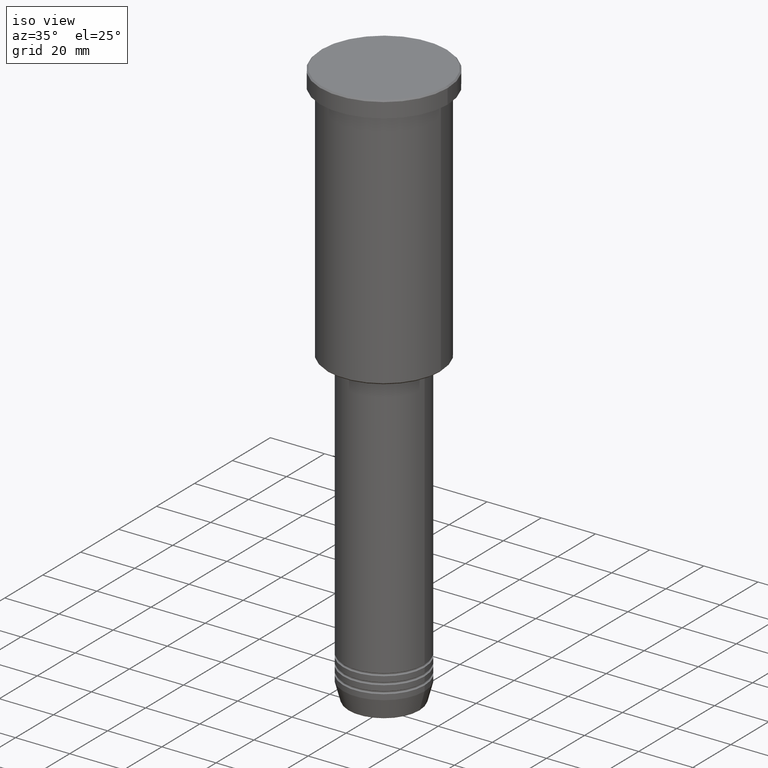
[diagram: clean part render]
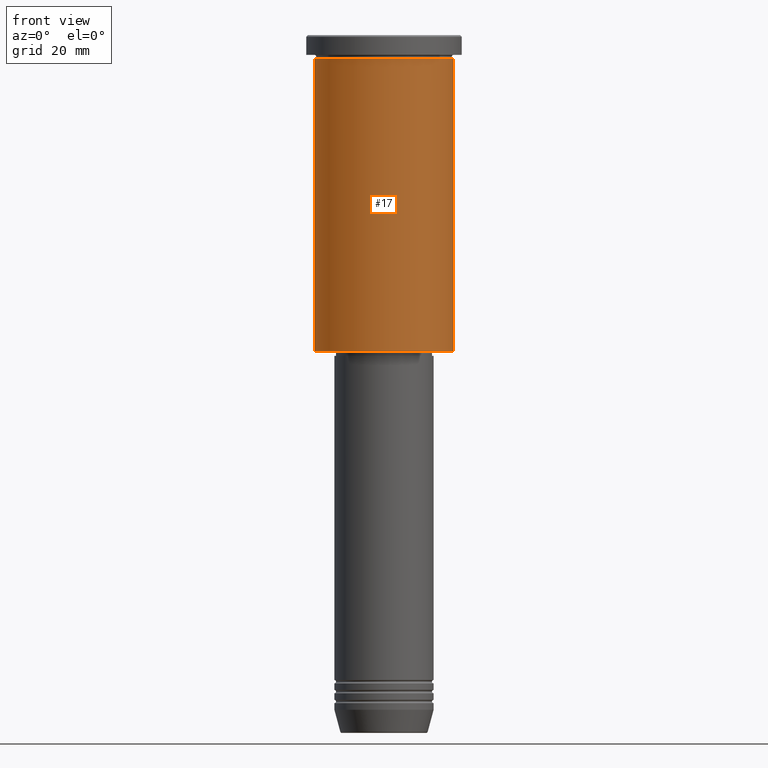
[diagram: tour spotlight — one face highlighted and labeled with its STEP entity id]
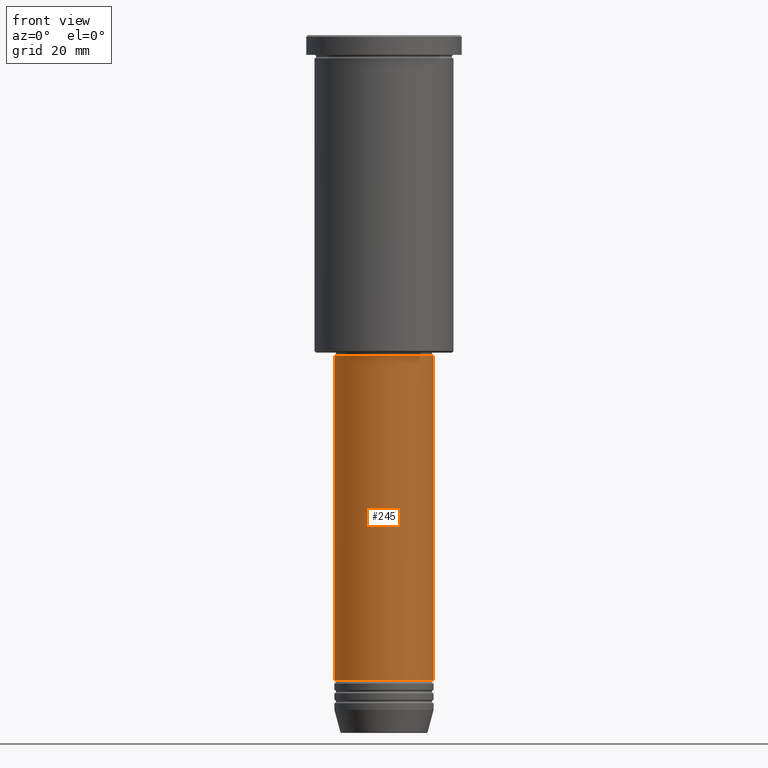
[diagram: tour spotlight — one face highlighted and labeled with its STEP entity id]
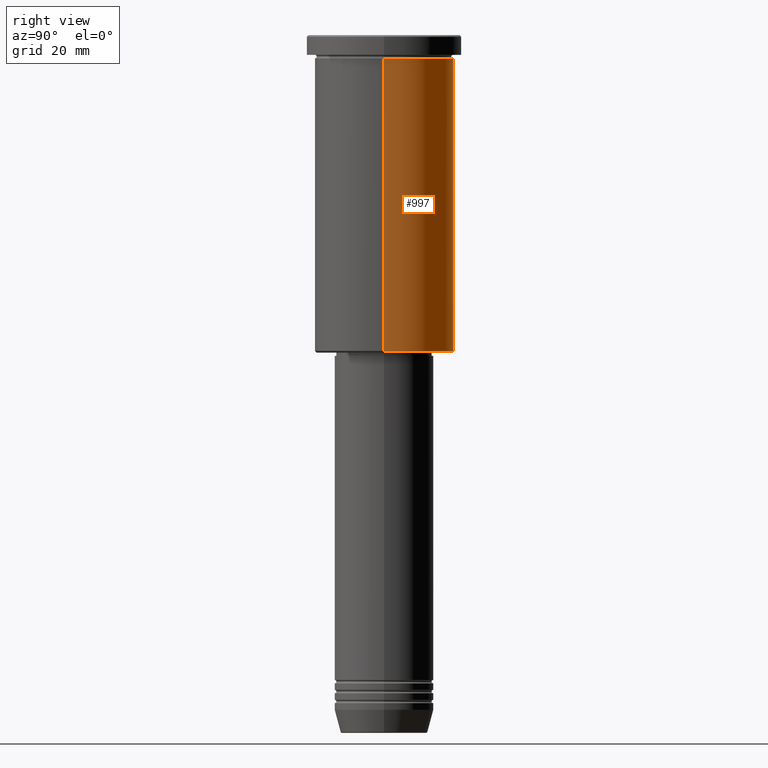
[diagram: tour spotlight — one face highlighted and labeled with its STEP entity id]
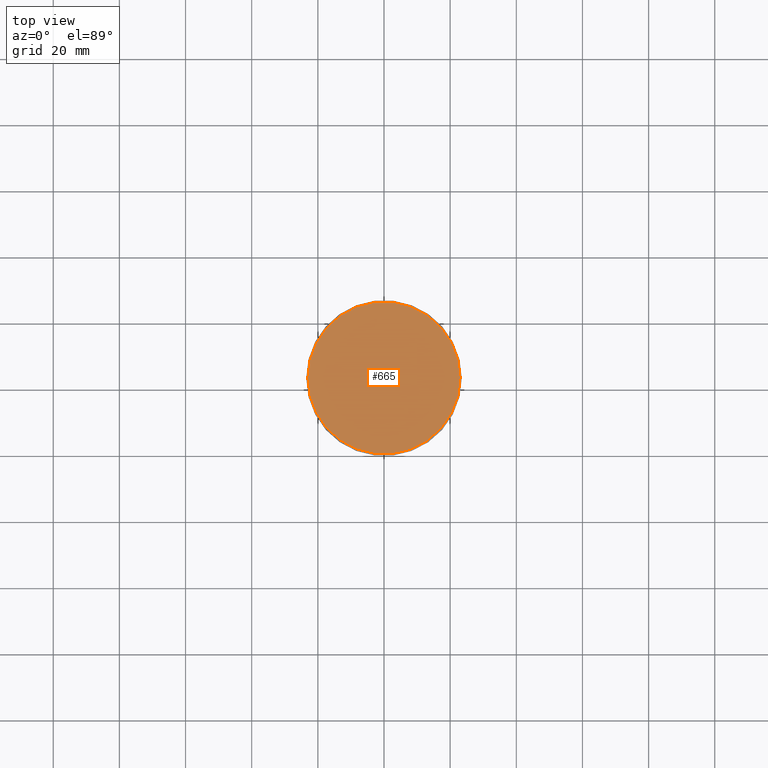
[diagram: tour spotlight — one face highlighted and labeled with its STEP entity id]
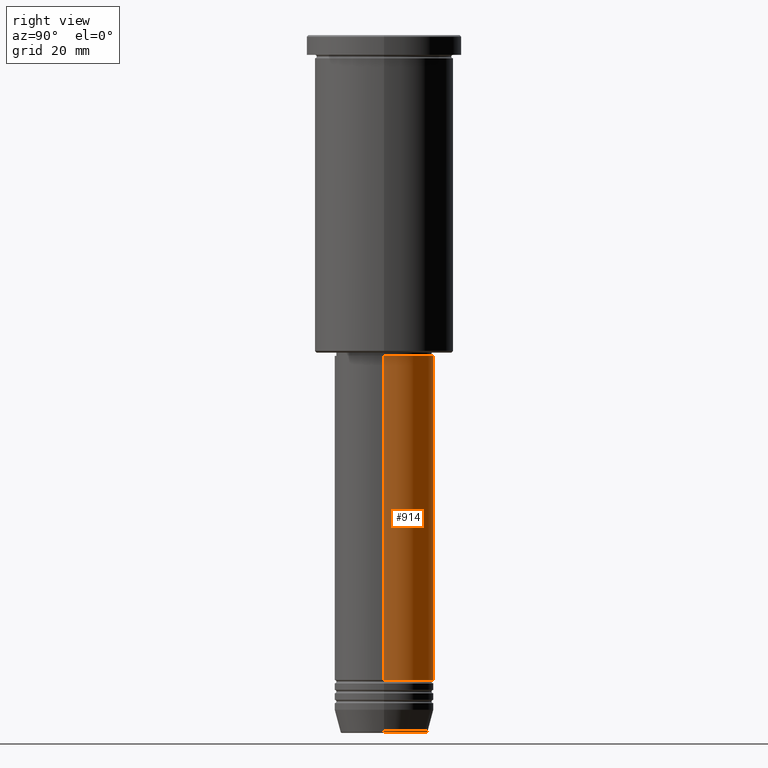
[diagram: tour spotlight — one face highlighted and labeled with its STEP entity id]
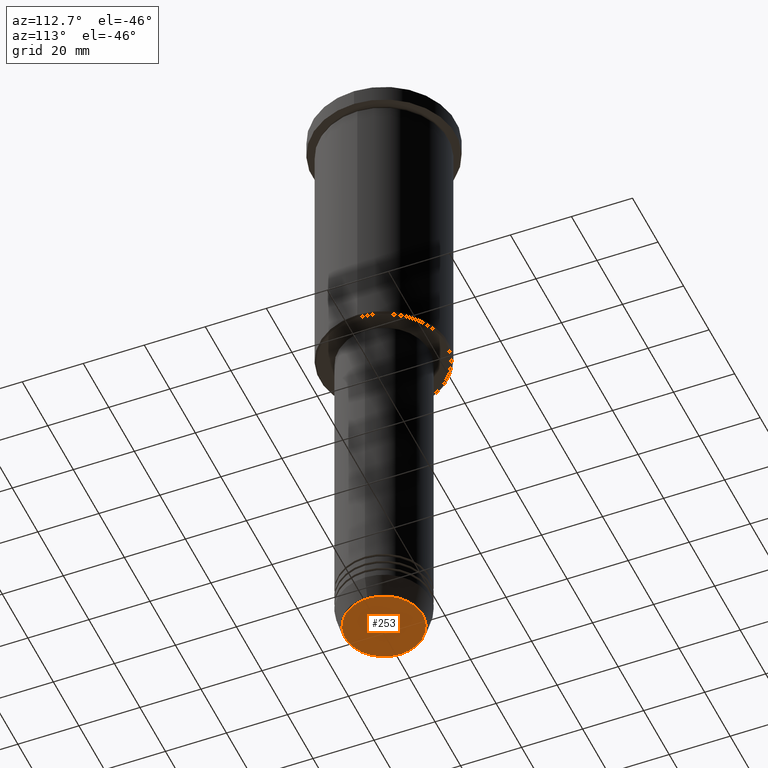
[diagram: tour spotlight — one face highlighted and labeled with its STEP entity id]
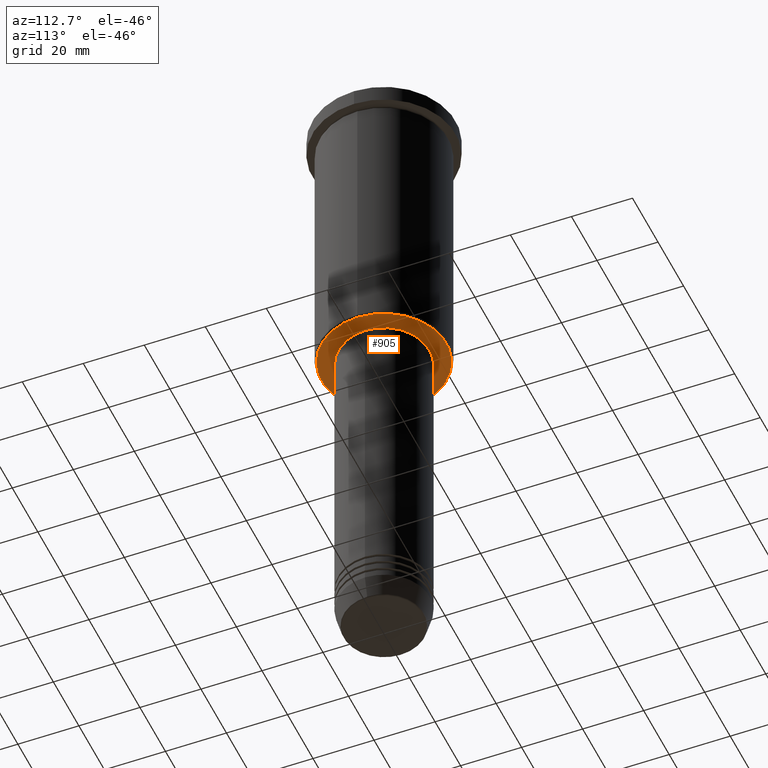
[diagram: tour spotlight — one face highlighted and labeled with its STEP entity id]
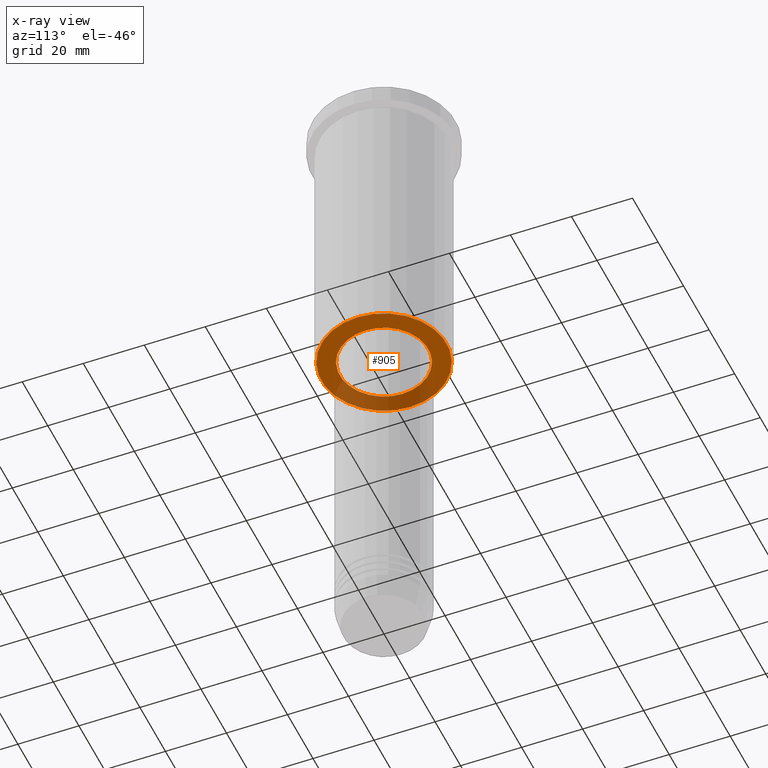
[diagram: x-ray of the same camera — body ghosted, this tour face saturated]
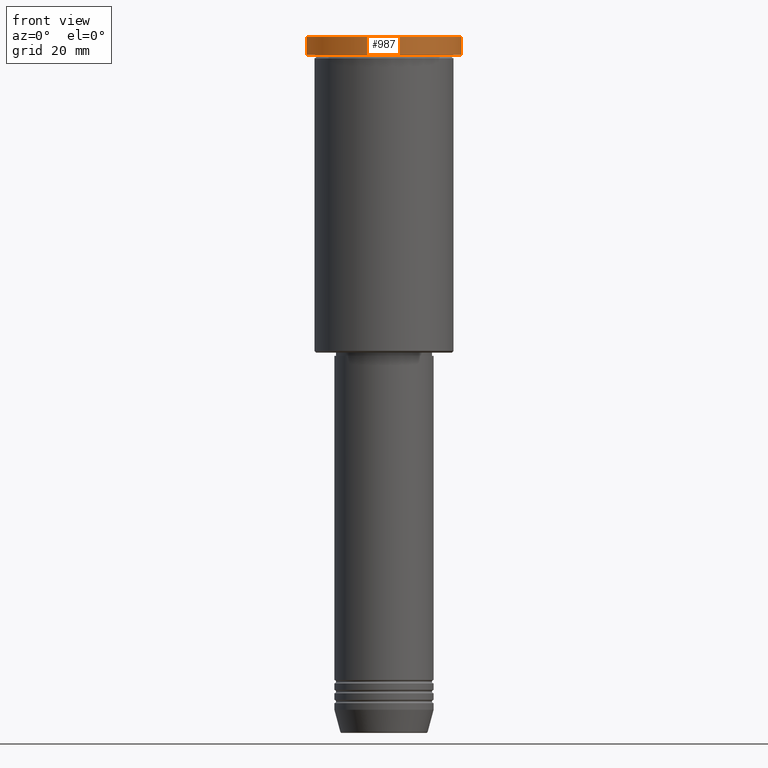
[diagram: tour spotlight — one face highlighted and labeled with its STEP entity id]
A machine part: a face-by-face anatomy tour. The part has 43 B-rep faces; the first image is the clean iso view, then the 8 largest visible faces are spotlighted one at a time (largest first), each with its STEP entity span.

Face 1 — front view, entity #17. In plain terms, the highlighted cylindrical surface (partial cylindrical patch) has radius 21 mm, axis along (-0, -0, 1).
Definition (entity closure, byte-faithful):
#8 = CARTESIAN_POINT ( 'NONE',  ( 21.00000000000000000, 0.000000000000000000, 0.000000000000000000 ) ) ;
#17 = ADVANCED_FACE ( 'NONE', ( #325 ), #713, .T. ) ;
#55 = VERTEX_POINT ( 'NONE', #374 ) ;
#66 = CARTESIAN_POINT ( 'NONE',  ( 0.000000000000000000, 0.000000000000000000, 0.000000000000000000 ) ) ;
#124 = DIRECTION ( 'NONE',  ( 1.000000000000000000, 0.000000000000000000, 0.000000000000000000 ) ) ;
#158 = ORIENTED_EDGE ( 'NONE', *, *, #659, .T. ) ;
#189 = CARTESIAN_POINT ( 'NONE',  ( 0.000000000000000000, 0.000000000000000000, -6.999999999999994671 ) ) ;
#223 = AXIS2_PLACEMENT_3D ( 'NONE', #66, #799, #1154 ) ;
#305 = CARTESIAN_POINT ( 'NONE',  ( -21.00000000000000000, 2.571758278209441661E-15, -6.999999999999994671 ) ) ;
#306 = CIRCLE ( 'NONE', #712, 21.00000000000000000 ) ;
#325 = FACE_OUTER_BOUND ( 'NONE', #680, .T. ) ;
#356 = ORIENTED_EDGE ( 'NONE', *, *, #924, .F. ) ;
#374 = CARTESIAN_POINT ( 'NONE',  ( -21.00000000000000000, 2.571758278209441661E-15, -95.50000000000000000 ) ) ;
#516 = CARTESIAN_POINT ( 'NONE',  ( 21.00000000000000000, 0.000000000000000000, -6.999999999999994671 ) ) ;
#572 = ORIENTED_EDGE ( 'NONE', *, *, #1133, .T. ) ;
#573 = LINE ( 'NONE', #672, #925 ) ;
#584 = EDGE_CURVE ( 'NONE', #55, #1008, #573, .T. ) ;
#605 = CARTESIAN_POINT ( 'NONE',  ( 0.000000000000000000, 0.000000000000000000, -95.50000000000000000 ) ) ;
#637 = LINE ( 'NONE', #8, #891 ) ;
#649 = VERTEX_POINT ( 'NONE', #516 ) ;
#659 = EDGE_CURVE ( 'NONE', #1043, #649, #637, .T. ) ;
#672 = CARTESIAN_POINT ( 'NONE',  ( -21.00000000000000000, 2.571758278209441661E-15, 0.000000000000000000 ) ) ;
#680 = EDGE_LOOP ( 'NONE', ( #754, #572, #158, #356 ) ) ;
#682 = DIRECTION ( 'NONE',  ( -0.000000000000000000, -0.000000000000000000, 1.000000000000000000 ) ) ;
#687 = CARTESIAN_POINT ( 'NONE',  ( 21.00000000000000000, 0.000000000000000000, -95.50000000000000000 ) ) ;
#712 = AXIS2_PLACEMENT_3D ( 'NONE', #605, #682, #1026 ) ;
#713 = CYLINDRICAL_SURFACE ( 'NONE', #223, 21.00000000000000000 ) ;
#739 = DIRECTION ( 'NONE',  ( -0.000000000000000000, -0.000000000000000000, 1.000000000000000000 ) ) ;
#754 = ORIENTED_EDGE ( 'NONE', *, *, #584, .F. ) ;
#799 = DIRECTION ( 'NONE',  ( -0.000000000000000000, -0.000000000000000000, 1.000000000000000000 ) ) ;
#888 = CIRCLE ( 'NONE', #1034, 21.00000000000000000 ) ;
#891 = VECTOR ( 'NONE', #739, 1000.000000000000000 ) ;
#924 = EDGE_CURVE ( 'NONE', #1008, #649, #888, .T. ) ;
#925 = VECTOR ( 'NONE', #1015, 1000.000000000000000 ) ;
#1008 = VERTEX_POINT ( 'NONE', #305 ) ;
#1015 = DIRECTION ( 'NONE',  ( -0.000000000000000000, -0.000000000000000000, 1.000000000000000000 ) ) ;
#1026 = DIRECTION ( 'NONE',  ( -1.000000000000000000, 0.000000000000000000, 0.000000000000000000 ) ) ;
#1034 = AXIS2_PLACEMENT_3D ( 'NONE', #189, #1109, #124 ) ;
#1043 = VERTEX_POINT ( 'NONE', #687 ) ;
#1109 = DIRECTION ( 'NONE',  ( -0.000000000000000000, -0.000000000000000000, 1.000000000000000000 ) ) ;
#1133 = EDGE_CURVE ( 'NONE', #55, #1043, #306, .T. ) ;
#1154 = DIRECTION ( 'NONE',  ( 1.000000000000000000, 0.000000000000000000, 0.000000000000000000 ) ) ;

Face 2 — front view, entity #245. In plain terms, the highlighted cylindrical surface (partial cylindrical patch) has radius 15 mm, axis along (-0, -0, 1).
Definition (entity closure, byte-faithful):
#1 = CYLINDRICAL_SURFACE ( 'NONE', #901, 15.00000000000000000 ) ;
#14 = CARTESIAN_POINT ( 'NONE',  ( 15.00000000000000000, 0.000000000000000000, 0.000000000000000000 ) ) ;
#101 = CARTESIAN_POINT ( 'NONE',  ( 0.000000000000000000, 0.000000000000000000, 0.000000000000000000 ) ) ;
#102 = DIRECTION ( 'NONE',  ( 1.000000000000000000, 0.000000000000000000, 0.000000000000000000 ) ) ;
#134 = DIRECTION ( 'NONE',  ( -0.000000000000000000, -0.000000000000000000, 1.000000000000000000 ) ) ;
#177 = CARTESIAN_POINT ( 'NONE',  ( 15.00000000000000000, 0.000000000000000000, -194.9999999999999716 ) ) ;
#214 = AXIS2_PLACEMENT_3D ( 'NONE', #1077, #544, #102 ) ;
#233 = CIRCLE ( 'NONE', #214, 15.00000000000000000 ) ;
#245 = ADVANCED_FACE ( 'NONE', ( #911 ), #1, .T. ) ;
#269 = EDGE_CURVE ( 'NONE', #597, #930, #1089, .T. ) ;
#367 = DIRECTION ( 'NONE',  ( -0.000000000000000000, -0.000000000000000000, 1.000000000000000000 ) ) ;
#390 = AXIS2_PLACEMENT_3D ( 'NONE', #875, #134, #644 ) ;
#510 = CARTESIAN_POINT ( 'NONE',  ( -15.00000000000000000, 1.836970198721029589E-15, 0.000000000000000000 ) ) ;
#538 = LINE ( 'NONE', #14, #790 ) ;
#544 = DIRECTION ( 'NONE',  ( -0.000000000000000000, -0.000000000000000000, 1.000000000000000000 ) ) ;
#597 = VERTEX_POINT ( 'NONE', #1039 ) ;
#606 = VERTEX_POINT ( 'NONE', #728 ) ;
#619 = EDGE_CURVE ( 'NONE', #606, #719, #233, .T. ) ;
#644 = DIRECTION ( 'NONE',  ( 1.000000000000000000, 0.000000000000000000, 0.000000000000000000 ) ) ;
#674 = EDGE_CURVE ( 'NONE', #930, #719, #538, .T. ) ;
#710 = ORIENTED_EDGE ( 'NONE', *, *, #805, .F. ) ;
#719 = VERTEX_POINT ( 'NONE', #784 ) ;
#728 = CARTESIAN_POINT ( 'NONE',  ( -15.00000000000000000, 1.836970198721029589E-15, -97.00000000000000000 ) ) ;
#760 = ORIENTED_EDGE ( 'NONE', *, *, #674, .T. ) ;
#784 = CARTESIAN_POINT ( 'NONE',  ( 15.00000000000000000, 0.000000000000000000, -97.00000000000000000 ) ) ;
#790 = VECTOR ( 'NONE', #367, 1000.000000000000000 ) ;
#792 = DIRECTION ( 'NONE',  ( -0.000000000000000000, -0.000000000000000000, 1.000000000000000000 ) ) ;
#805 = EDGE_CURVE ( 'NONE', #597, #606, #1054, .T. ) ;
#810 = ORIENTED_EDGE ( 'NONE', *, *, #619, .F. ) ;
#864 = EDGE_LOOP ( 'NONE', ( #710, #965, #760, #810 ) ) ;
#875 = CARTESIAN_POINT ( 'NONE',  ( 0.000000000000000000, 0.000000000000000000, -194.9999999999999716 ) ) ;
#901 = AXIS2_PLACEMENT_3D ( 'NONE', #101, #1061, #1067 ) ;
#911 = FACE_OUTER_BOUND ( 'NONE', #864, .T. ) ;
#930 = VERTEX_POINT ( 'NONE', #177 ) ;
#965 = ORIENTED_EDGE ( 'NONE', *, *, #269, .T. ) ;
#1039 = CARTESIAN_POINT ( 'NONE',  ( -15.00000000000000000, 1.836970198721029589E-15, -194.9999999999999716 ) ) ;
#1054 = LINE ( 'NONE', #510, #1072 ) ;
#1061 = DIRECTION ( 'NONE',  ( -0.000000000000000000, -0.000000000000000000, 1.000000000000000000 ) ) ;
#1067 = DIRECTION ( 'NONE',  ( 1.000000000000000000, 0.000000000000000000, 0.000000000000000000 ) ) ;
#1072 = VECTOR ( 'NONE', #792, 1000.000000000000000 ) ;
#1077 = CARTESIAN_POINT ( 'NONE',  ( 0.000000000000000000, 0.000000000000000000, -97.00000000000000000 ) ) ;
#1089 = CIRCLE ( 'NONE', #390, 15.00000000000000000 ) ;

Face 3 — right view, entity #997. In plain terms, the highlighted cylindrical surface (partial cylindrical patch) has radius 21 mm, axis along (-0, -0, 1).
Definition (entity closure, byte-faithful):
#8 = CARTESIAN_POINT ( 'NONE',  ( 21.00000000000000000, 0.000000000000000000, 0.000000000000000000 ) ) ;
#29 = FACE_OUTER_BOUND ( 'NONE', #273, .T. ) ;
#55 = VERTEX_POINT ( 'NONE', #374 ) ;
#127 = EDGE_CURVE ( 'NONE', #1043, #55, #995, .T. ) ;
#273 = EDGE_LOOP ( 'NONE', ( #466, #608, #1029, #1124 ) ) ;
#305 = CARTESIAN_POINT ( 'NONE',  ( -21.00000000000000000, 2.571758278209441661E-15, -6.999999999999994671 ) ) ;
#338 = AXIS2_PLACEMENT_3D ( 'NONE', #517, #1145, #886 ) ;
#374 = CARTESIAN_POINT ( 'NONE',  ( -21.00000000000000000, 2.571758278209441661E-15, -95.50000000000000000 ) ) ;
#392 = CYLINDRICAL_SURFACE ( 'NONE', #982, 21.00000000000000000 ) ;
#466 = ORIENTED_EDGE ( 'NONE', *, *, #127, .T. ) ;
#516 = CARTESIAN_POINT ( 'NONE',  ( 21.00000000000000000, 0.000000000000000000, -6.999999999999994671 ) ) ;
#517 = CARTESIAN_POINT ( 'NONE',  ( 0.000000000000000000, 0.000000000000000000, -6.999999999999994671 ) ) ;
#573 = LINE ( 'NONE', #672, #925 ) ;
#584 = EDGE_CURVE ( 'NONE', #55, #1008, #573, .T. ) ;
#608 = ORIENTED_EDGE ( 'NONE', *, *, #584, .T. ) ;
#637 = LINE ( 'NONE', #8, #891 ) ;
#638 = DIRECTION ( 'NONE',  ( -0.000000000000000000, -0.000000000000000000, 1.000000000000000000 ) ) ;
#641 = AXIS2_PLACEMENT_3D ( 'NONE', #978, #703, #918 ) ;
#649 = VERTEX_POINT ( 'NONE', #516 ) ;
#659 = EDGE_CURVE ( 'NONE', #1043, #649, #637, .T. ) ;
#672 = CARTESIAN_POINT ( 'NONE',  ( -21.00000000000000000, 2.571758278209441661E-15, 0.000000000000000000 ) ) ;
#687 = CARTESIAN_POINT ( 'NONE',  ( 21.00000000000000000, 0.000000000000000000, -95.50000000000000000 ) ) ;
#703 = DIRECTION ( 'NONE',  ( -0.000000000000000000, -0.000000000000000000, 1.000000000000000000 ) ) ;
#731 = DIRECTION ( 'NONE',  ( 1.000000000000000000, 0.000000000000000000, 0.000000000000000000 ) ) ;
#739 = DIRECTION ( 'NONE',  ( -0.000000000000000000, -0.000000000000000000, 1.000000000000000000 ) ) ;
#844 = EDGE_CURVE ( 'NONE', #649, #1008, #1017, .T. ) ;
#886 = DIRECTION ( 'NONE',  ( 1.000000000000000000, 0.000000000000000000, 0.000000000000000000 ) ) ;
#891 = VECTOR ( 'NONE', #739, 1000.000000000000000 ) ;
#918 = DIRECTION ( 'NONE',  ( -1.000000000000000000, 0.000000000000000000, 0.000000000000000000 ) ) ;
#925 = VECTOR ( 'NONE', #1015, 1000.000000000000000 ) ;
#978 = CARTESIAN_POINT ( 'NONE',  ( 0.000000000000000000, 0.000000000000000000, -95.50000000000000000 ) ) ;
#982 = AXIS2_PLACEMENT_3D ( 'NONE', #1113, #638, #731 ) ;
#995 = CIRCLE ( 'NONE', #641, 21.00000000000000000 ) ;
#997 = ADVANCED_FACE ( 'NONE', ( #29 ), #392, .T. ) ;
#1008 = VERTEX_POINT ( 'NONE', #305 ) ;
#1015 = DIRECTION ( 'NONE',  ( -0.000000000000000000, -0.000000000000000000, 1.000000000000000000 ) ) ;
#1017 = CIRCLE ( 'NONE', #338, 21.00000000000000000 ) ;
#1029 = ORIENTED_EDGE ( 'NONE', *, *, #844, .F. ) ;
#1043 = VERTEX_POINT ( 'NONE', #687 ) ;
#1113 = CARTESIAN_POINT ( 'NONE',  ( 0.000000000000000000, 0.000000000000000000, 0.000000000000000000 ) ) ;
#1124 = ORIENTED_EDGE ( 'NONE', *, *, #659, .F. ) ;
#1145 = DIRECTION ( 'NONE',  ( -0.000000000000000000, -0.000000000000000000, 1.000000000000000000 ) ) ;

Face 4 — top view, entity #665. In plain terms, the highlighted planar face has unit normal (0, -0, 1).
Definition (entity closure, byte-faithful):
#18 = DIRECTION ( 'NONE',  ( 1.000000000000000000, 0.000000000000000000, 0.000000000000000000 ) ) ;
#88 = FACE_OUTER_BOUND ( 'NONE', #138, .T. ) ;
#138 = EDGE_LOOP ( 'NONE', ( #909, #989 ) ) ;
#193 = CARTESIAN_POINT ( 'NONE',  ( 0.000000000000000000, 0.000000000000000000, 0.000000000000000000 ) ) ;
#331 = AXIS2_PLACEMENT_3D ( 'NONE', #958, #506, #863 ) ;
#349 = PLANE ( 'NONE',  #872 ) ;
#359 = DIRECTION ( 'NONE',  ( 0.000000000000000000, -0.000000000000000000, 1.000000000000000000 ) ) ;
#506 = DIRECTION ( 'NONE',  ( -0.000000000000000000, -0.000000000000000000, 1.000000000000000000 ) ) ;
#511 = EDGE_CURVE ( 'NONE', #1182, #856, #524, .T. ) ;
#524 = CIRCLE ( 'NONE', #331, 23.00000000000002487 ) ;
#634 = AXIS2_PLACEMENT_3D ( 'NONE', #835, #1079, #18 ) ;
#665 = ADVANCED_FACE ( 'NONE', ( #88 ), #349, .T. ) ;
#835 = CARTESIAN_POINT ( 'NONE',  ( 0.000000000000000000, 0.000000000000000000, 0.000000000000000000 ) ) ;
#856 = VERTEX_POINT ( 'NONE', #1166 ) ;
#863 = DIRECTION ( 'NONE',  ( 1.000000000000000000, 0.000000000000000000, 0.000000000000000000 ) ) ;
#872 = AXIS2_PLACEMENT_3D ( 'NONE', #193, #359, #984 ) ;
#889 = CIRCLE ( 'NONE', #634, 23.00000000000002487 ) ;
#909 = ORIENTED_EDGE ( 'NONE', *, *, #511, .T. ) ;
#958 = CARTESIAN_POINT ( 'NONE',  ( 0.000000000000000000, 0.000000000000000000, 0.000000000000000000 ) ) ;
#984 = DIRECTION ( 'NONE',  ( 1.000000000000000000, 0.000000000000000000, 0.000000000000000000 ) ) ;
#989 = ORIENTED_EDGE ( 'NONE', *, *, #1011, .T. ) ;
#1011 = EDGE_CURVE ( 'NONE', #856, #1182, #889, .T. ) ;
#1079 = DIRECTION ( 'NONE',  ( -0.000000000000000000, -0.000000000000000000, 1.000000000000000000 ) ) ;
#1132 = CARTESIAN_POINT ( 'NONE',  ( -23.00000000000002487, 0.000000000000000000, 0.000000000000000000 ) ) ;
#1166 = CARTESIAN_POINT ( 'NONE',  ( 23.00000000000002487, 2.847303808017597717E-15, 0.000000000000000000 ) ) ;
#1182 = VERTEX_POINT ( 'NONE', #1132 ) ;

Face 5 — right view, entity #914. In plain terms, the highlighted cylindrical surface (partial cylindrical patch) has radius 15 mm, axis along (-0, -0, 1).
Definition (entity closure, byte-faithful):
#4 = CARTESIAN_POINT ( 'NONE',  ( 0.000000000000000000, 0.000000000000000000, -97.00000000000000000 ) ) ;
#5 = AXIS2_PLACEMENT_3D ( 'NONE', #350, #977, #1070 ) ;
#14 = CARTESIAN_POINT ( 'NONE',  ( 15.00000000000000000, 0.000000000000000000, 0.000000000000000000 ) ) ;
#24 = DIRECTION ( 'NONE',  ( 1.000000000000000000, 0.000000000000000000, 0.000000000000000000 ) ) ;
#48 = CIRCLE ( 'NONE', #1027, 15.00000000000000000 ) ;
#177 = CARTESIAN_POINT ( 'NONE',  ( 15.00000000000000000, 0.000000000000000000, -194.9999999999999716 ) ) ;
#241 = ORIENTED_EDGE ( 'NONE', *, *, #805, .T. ) ;
#333 = EDGE_CURVE ( 'NONE', #719, #606, #48, .T. ) ;
#350 = CARTESIAN_POINT ( 'NONE',  ( 0.000000000000000000, 0.000000000000000000, -194.9999999999999716 ) ) ;
#366 = DIRECTION ( 'NONE',  ( 1.000000000000000000, 0.000000000000000000, 0.000000000000000000 ) ) ;
#367 = DIRECTION ( 'NONE',  ( -0.000000000000000000, -0.000000000000000000, 1.000000000000000000 ) ) ;
#459 = CYLINDRICAL_SURFACE ( 'NONE', #554, 15.00000000000000000 ) ;
#463 = CIRCLE ( 'NONE', #5, 15.00000000000000000 ) ;
#510 = CARTESIAN_POINT ( 'NONE',  ( -15.00000000000000000, 1.836970198721029589E-15, 0.000000000000000000 ) ) ;
#532 = FACE_OUTER_BOUND ( 'NONE', #1074, .T. ) ;
#538 = LINE ( 'NONE', #14, #790 ) ;
#554 = AXIS2_PLACEMENT_3D ( 'NONE', #1104, #671, #24 ) ;
#576 = ORIENTED_EDGE ( 'NONE', *, *, #333, .F. ) ;
#587 = ORIENTED_EDGE ( 'NONE', *, *, #674, .F. ) ;
#597 = VERTEX_POINT ( 'NONE', #1039 ) ;
#606 = VERTEX_POINT ( 'NONE', #728 ) ;
#647 = ORIENTED_EDGE ( 'NONE', *, *, #1030, .T. ) ;
#671 = DIRECTION ( 'NONE',  ( -0.000000000000000000, -0.000000000000000000, 1.000000000000000000 ) ) ;
#674 = EDGE_CURVE ( 'NONE', #930, #719, #538, .T. ) ;
#719 = VERTEX_POINT ( 'NONE', #784 ) ;
#728 = CARTESIAN_POINT ( 'NONE',  ( -15.00000000000000000, 1.836970198721029589E-15, -97.00000000000000000 ) ) ;
#784 = CARTESIAN_POINT ( 'NONE',  ( 15.00000000000000000, 0.000000000000000000, -97.00000000000000000 ) ) ;
#790 = VECTOR ( 'NONE', #367, 1000.000000000000000 ) ;
#792 = DIRECTION ( 'NONE',  ( -0.000000000000000000, -0.000000000000000000, 1.000000000000000000 ) ) ;
#805 = EDGE_CURVE ( 'NONE', #597, #606, #1054, .T. ) ;
#827 = DIRECTION ( 'NONE',  ( -0.000000000000000000, -0.000000000000000000, 1.000000000000000000 ) ) ;
#914 = ADVANCED_FACE ( 'NONE', ( #532 ), #459, .T. ) ;
#930 = VERTEX_POINT ( 'NONE', #177 ) ;
#977 = DIRECTION ( 'NONE',  ( -0.000000000000000000, -0.000000000000000000, 1.000000000000000000 ) ) ;
#1027 = AXIS2_PLACEMENT_3D ( 'NONE', #4, #827, #366 ) ;
#1030 = EDGE_CURVE ( 'NONE', #930, #597, #463, .T. ) ;
#1039 = CARTESIAN_POINT ( 'NONE',  ( -15.00000000000000000, 1.836970198721029589E-15, -194.9999999999999716 ) ) ;
#1054 = LINE ( 'NONE', #510, #1072 ) ;
#1070 = DIRECTION ( 'NONE',  ( 1.000000000000000000, 0.000000000000000000, 0.000000000000000000 ) ) ;
#1072 = VECTOR ( 'NONE', #792, 1000.000000000000000 ) ;
#1074 = EDGE_LOOP ( 'NONE', ( #647, #241, #576, #587 ) ) ;
#1104 = CARTESIAN_POINT ( 'NONE',  ( 0.000000000000000000, 0.000000000000000000, 0.000000000000000000 ) ) ;

Face 6 — auxiliary view, entity #253. In plain terms, the highlighted planar face has unit normal (0, -0, 1).
Definition (entity closure, byte-faithful):
#148 = EDGE_CURVE ( 'NONE', #1146, #543, #776, .T. ) ;
#219 = CARTESIAN_POINT ( 'NONE',  ( 12.74069215899265828, 0.000000000000000000, -211.0000000000000284 ) ) ;
#253 = ADVANCED_FACE ( 'NONE', ( #627 ), #363, .F. ) ;
#303 = EDGE_CURVE ( 'NONE', #543, #1146, #546, .T. ) ;
#317 = ORIENTED_EDGE ( 'NONE', *, *, #148, .T. ) ;
#363 = PLANE ( 'NONE',  #953 ) ;
#403 = CARTESIAN_POINT ( 'NONE',  ( -12.74069215899265828, 1.589857736427681035E-15, -211.0000000000000284 ) ) ;
#422 = DIRECTION ( 'NONE',  ( 0.000000000000000000, -0.000000000000000000, 1.000000000000000000 ) ) ;
#525 = ORIENTED_EDGE ( 'NONE', *, *, #303, .T. ) ;
#543 = VERTEX_POINT ( 'NONE', #219 ) ;
#546 = CIRCLE ( 'NONE', #589, 12.74069215899265828 ) ;
#589 = AXIS2_PLACEMENT_3D ( 'NONE', #766, #1112, #917 ) ;
#627 = FACE_OUTER_BOUND ( 'NONE', #1180, .T. ) ;
#662 = DIRECTION ( 'NONE',  ( 1.000000000000000000, 0.000000000000000000, 0.000000000000000000 ) ) ;
#732 = CARTESIAN_POINT ( 'NONE',  ( 0.000000000000000000, 0.000000000000000000, -211.0000000000000284 ) ) ;
#766 = CARTESIAN_POINT ( 'NONE',  ( 0.000000000000000000, 0.000000000000000000, -211.0000000000000284 ) ) ;
#776 = CIRCLE ( 'NONE', #798, 12.74069215899265828 ) ;
#794 = DIRECTION ( 'NONE',  ( 1.000000000000000000, 0.000000000000000000, 0.000000000000000000 ) ) ;
#798 = AXIS2_PLACEMENT_3D ( 'NONE', #1105, #996, #662 ) ;
#917 = DIRECTION ( 'NONE',  ( 1.000000000000000000, 0.000000000000000000, 0.000000000000000000 ) ) ;
#953 = AXIS2_PLACEMENT_3D ( 'NONE', #732, #422, #794 ) ;
#996 = DIRECTION ( 'NONE',  ( 0.000000000000000000, 0.000000000000000000, -1.000000000000000000 ) ) ;
#1105 = CARTESIAN_POINT ( 'NONE',  ( 0.000000000000000000, 0.000000000000000000, -211.0000000000000284 ) ) ;
#1112 = DIRECTION ( 'NONE',  ( 0.000000000000000000, 0.000000000000000000, -1.000000000000000000 ) ) ;
#1146 = VERTEX_POINT ( 'NONE', #403 ) ;
#1180 = EDGE_LOOP ( 'NONE', ( #525, #317 ) ) ;

Face 7 — auxiliary view, entity #905. An x-ray twin of the same camera follows (body ghosted, this face saturated) — the face is partly hidden behind the body. In plain terms, the highlighted planar face has unit normal (0, 0, -1).
Definition (entity closure, byte-faithful):
#33 = DIRECTION ( 'NONE',  ( -0.000000000000000000, -0.000000000000000000, 1.000000000000000000 ) ) ;
#38 = AXIS2_PLACEMENT_3D ( 'NONE', #858, #954, #1140 ) ;
#42 = ORIENTED_EDGE ( 'NONE', *, *, #1110, .T. ) ;
#43 = CARTESIAN_POINT ( 'NONE',  ( 0.000000000000000000, 0.000000000000000000, -96.00000000000000000 ) ) ;
#78 = VERTEX_POINT ( 'NONE', #829 ) ;
#89 = CARTESIAN_POINT ( 'NONE',  ( 0.000000000000000000, 21.00000000000000000, -96.00000000000000000 ) ) ;
#129 = DIRECTION ( 'NONE',  ( 0.000000000000000000, 0.000000000000000000, -1.000000000000000000 ) ) ;
#143 = CARTESIAN_POINT ( 'NONE',  ( 0.000000000000000000, 0.000000000000000000, -96.00000000000000000 ) ) ;
#152 = EDGE_LOOP ( 'NONE', ( #42, #980 ) ) ;
#179 = CARTESIAN_POINT ( 'NONE',  ( -20.49999999999998934, 2.541142108230757480E-15, -96.00000000000000000 ) ) ;
#201 = EDGE_CURVE ( 'NONE', #78, #1060, #947, .T. ) ;
#248 = VERTEX_POINT ( 'NONE', #179 ) ;
#301 = DIRECTION ( 'NONE',  ( -1.000000000000000000, 0.000000000000000000, -0.000000000000000000 ) ) ;
#318 = AXIS2_PLACEMENT_3D ( 'NONE', #143, #129, #946 ) ;
#332 = FACE_OUTER_BOUND ( 'NONE', #152, .T. ) ;
#417 = ORIENTED_EDGE ( 'NONE', *, *, #201, .T. ) ;
#448 = AXIS2_PLACEMENT_3D ( 'NONE', #43, #33, #767 ) ;
#490 = CARTESIAN_POINT ( 'NONE',  ( -14.49999999999999822, 1.775737858763662015E-15, -96.00000000000000000 ) ) ;
#501 = VERTEX_POINT ( 'NONE', #715 ) ;
#548 = ORIENTED_EDGE ( 'NONE', *, *, #1168, .T. ) ;
#693 = CIRCLE ( 'NONE', #961, 14.49999999999999822 ) ;
#715 = CARTESIAN_POINT ( 'NONE',  ( 20.49999999999998934, 0.000000000000000000, -96.00000000000000000 ) ) ;
#767 = DIRECTION ( 'NONE',  ( 1.000000000000000000, 0.000000000000000000, 0.000000000000000000 ) ) ;
#823 = AXIS2_PLACEMENT_3D ( 'NONE', #89, #842, #301 ) ;
#829 = CARTESIAN_POINT ( 'NONE',  ( 14.49999999999999822, 0.000000000000000000, -96.00000000000000000 ) ) ;
#842 = DIRECTION ( 'NONE',  ( 0.000000000000000000, 0.000000000000000000, -1.000000000000000000 ) ) ;
#850 = DIRECTION ( 'NONE',  ( -0.000000000000000000, -0.000000000000000000, 1.000000000000000000 ) ) ;
#858 = CARTESIAN_POINT ( 'NONE',  ( 0.000000000000000000, 0.000000000000000000, -96.00000000000000000 ) ) ;
#905 = ADVANCED_FACE ( 'NONE', ( #332, #966 ), #994, .T. ) ;
#908 = CIRCLE ( 'NONE', #318, 20.49999999999998934 ) ;
#939 = DIRECTION ( 'NONE',  ( 1.000000000000000000, 0.000000000000000000, 0.000000000000000000 ) ) ;
#946 = DIRECTION ( 'NONE',  ( -1.000000000000000000, 0.000000000000000000, 0.000000000000000000 ) ) ;
#947 = CIRCLE ( 'NONE', #448, 14.49999999999999822 ) ;
#954 = DIRECTION ( 'NONE',  ( 0.000000000000000000, 0.000000000000000000, -1.000000000000000000 ) ) ;
#961 = AXIS2_PLACEMENT_3D ( 'NONE', #1023, #850, #939 ) ;
#966 = FACE_BOUND ( 'NONE', #1121, .T. ) ;
#980 = ORIENTED_EDGE ( 'NONE', *, *, #1049, .T. ) ;
#994 = PLANE ( 'NONE',  #823 ) ;
#1023 = CARTESIAN_POINT ( 'NONE',  ( 0.000000000000000000, 0.000000000000000000, -96.00000000000000000 ) ) ;
#1049 = EDGE_CURVE ( 'NONE', #248, #501, #908, .T. ) ;
#1060 = VERTEX_POINT ( 'NONE', #490 ) ;
#1110 = EDGE_CURVE ( 'NONE', #501, #248, #1164, .T. ) ;
#1121 = EDGE_LOOP ( 'NONE', ( #417, #548 ) ) ;
#1140 = DIRECTION ( 'NONE',  ( -1.000000000000000000, 0.000000000000000000, 0.000000000000000000 ) ) ;
#1164 = CIRCLE ( 'NONE', #38, 20.49999999999998934 ) ;
#1168 = EDGE_CURVE ( 'NONE', #1060, #78, #693, .T. ) ;

Face 8 — front view, entity #987. In plain terms, the highlighted cylindrical surface (partial cylindrical patch) has radius 23.5 mm, axis along (-0, -0, 1).
Definition (entity closure, byte-faithful):
#74 = AXIS2_PLACEMENT_3D ( 'NONE', #155, #809, #237 ) ;
#79 = CARTESIAN_POINT ( 'NONE',  ( 23.50000000000000000, 0.000000000000000000, -5.999999999999994671 ) ) ;
#155 = CARTESIAN_POINT ( 'NONE',  ( 0.000000000000000000, 0.000000000000000000, -5.999999999999994671 ) ) ;
#169 = LINE ( 'NONE', #250, #249 ) ;
#202 = CARTESIAN_POINT ( 'NONE',  ( 0.000000000000000000, 0.000000000000000000, -0.5000000000000004441 ) ) ;
#210 = CIRCLE ( 'NONE', #74, 23.50000000000000000 ) ;
#211 = CARTESIAN_POINT ( 'NONE',  ( 0.000000000000000000, 0.000000000000000000, 0.000000000000000000 ) ) ;
#237 = DIRECTION ( 'NONE',  ( 1.000000000000000000, 0.000000000000000000, 0.000000000000000000 ) ) ;
#249 = VECTOR ( 'NONE', #528, 1000.000000000000000 ) ;
#250 = CARTESIAN_POINT ( 'NONE',  ( -23.50000000000000000, 2.877919977996280320E-15, 0.000000000000000000 ) ) ;
#294 = CYLINDRICAL_SURFACE ( 'NONE', #595, 23.50000000000000000 ) ;
#295 = EDGE_CURVE ( 'NONE', #716, #1033, #351, .T. ) ;
#302 = ORIENTED_EDGE ( 'NONE', *, *, #295, .T. ) ;
#307 = EDGE_LOOP ( 'NONE', ( #438, #976, #735, #302 ) ) ;
#351 = CIRCLE ( 'NONE', #819, 23.50000000000000000 ) ;
#438 = ORIENTED_EDGE ( 'NONE', *, *, #828, .F. ) ;
#507 = DIRECTION ( 'NONE',  ( -0.000000000000000000, -0.000000000000000000, 1.000000000000000000 ) ) ;
#509 = VERTEX_POINT ( 'NONE', #945 ) ;
#528 = DIRECTION ( 'NONE',  ( -0.000000000000000000, -0.000000000000000000, 1.000000000000000000 ) ) ;
#581 = DIRECTION ( 'NONE',  ( -0.000000000000000000, -0.000000000000000000, 1.000000000000000000 ) ) ;
#595 = AXIS2_PLACEMENT_3D ( 'NONE', #211, #581, #723 ) ;
#632 = CARTESIAN_POINT ( 'NONE',  ( -23.50000000000000000, 2.877919977996280320E-15, -0.5000000000000004441 ) ) ;
#650 = DIRECTION ( 'NONE',  ( 0.000000000000000000, 0.000000000000000000, -1.000000000000000000 ) ) ;
#661 = DIRECTION ( 'NONE',  ( 1.000000000000000000, 0.000000000000000000, 0.000000000000000000 ) ) ;
#716 = VERTEX_POINT ( 'NONE', #1118 ) ;
#723 = DIRECTION ( 'NONE',  ( 1.000000000000000000, 0.000000000000000000, 0.000000000000000000 ) ) ;
#735 = ORIENTED_EDGE ( 'NONE', *, *, #1063, .T. ) ;
#786 = LINE ( 'NONE', #865, #853 ) ;
#809 = DIRECTION ( 'NONE',  ( -0.000000000000000000, -0.000000000000000000, 1.000000000000000000 ) ) ;
#819 = AXIS2_PLACEMENT_3D ( 'NONE', #202, #650, #661 ) ;
#828 = EDGE_CURVE ( 'NONE', #509, #1033, #169, .T. ) ;
#853 = VECTOR ( 'NONE', #507, 1000.000000000000000 ) ;
#855 = EDGE_CURVE ( 'NONE', #509, #920, #210, .T. ) ;
#865 = CARTESIAN_POINT ( 'NONE',  ( 23.50000000000000000, 0.000000000000000000, 0.000000000000000000 ) ) ;
#920 = VERTEX_POINT ( 'NONE', #79 ) ;
#945 = CARTESIAN_POINT ( 'NONE',  ( -23.50000000000000000, 2.877919977996280320E-15, -5.999999999999994671 ) ) ;
#976 = ORIENTED_EDGE ( 'NONE', *, *, #855, .T. ) ;
#987 = ADVANCED_FACE ( 'NONE', ( #1181 ), #294, .T. ) ;
#1033 = VERTEX_POINT ( 'NONE', #632 ) ;
#1063 = EDGE_CURVE ( 'NONE', #920, #716, #786, .T. ) ;
#1118 = CARTESIAN_POINT ( 'NONE',  ( 23.50000000000000000, 0.000000000000000000, -0.5000000000000004441 ) ) ;
#1181 = FACE_OUTER_BOUND ( 'NONE', #307, .T. ) ;